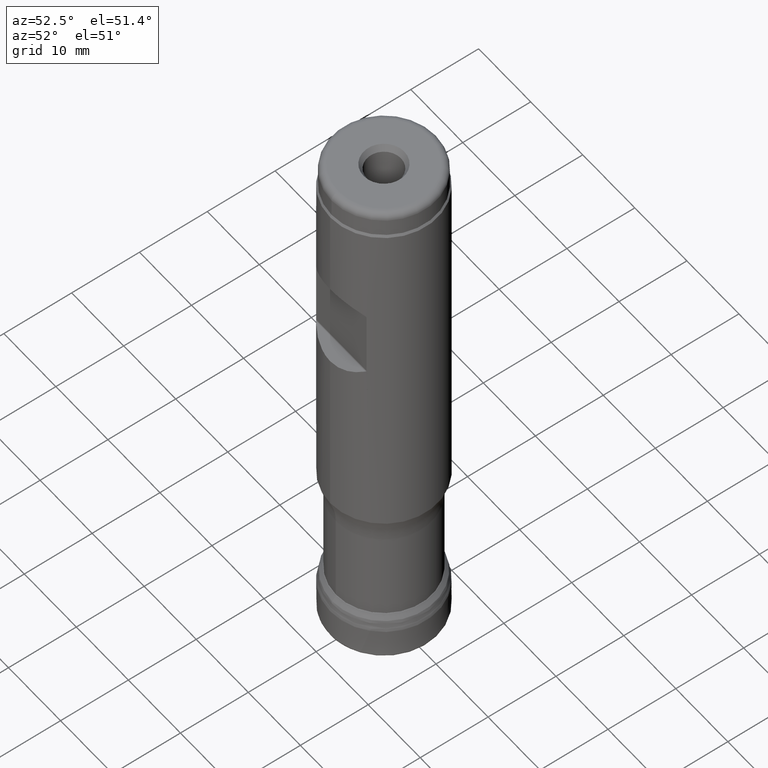
[diagram: clean part render]
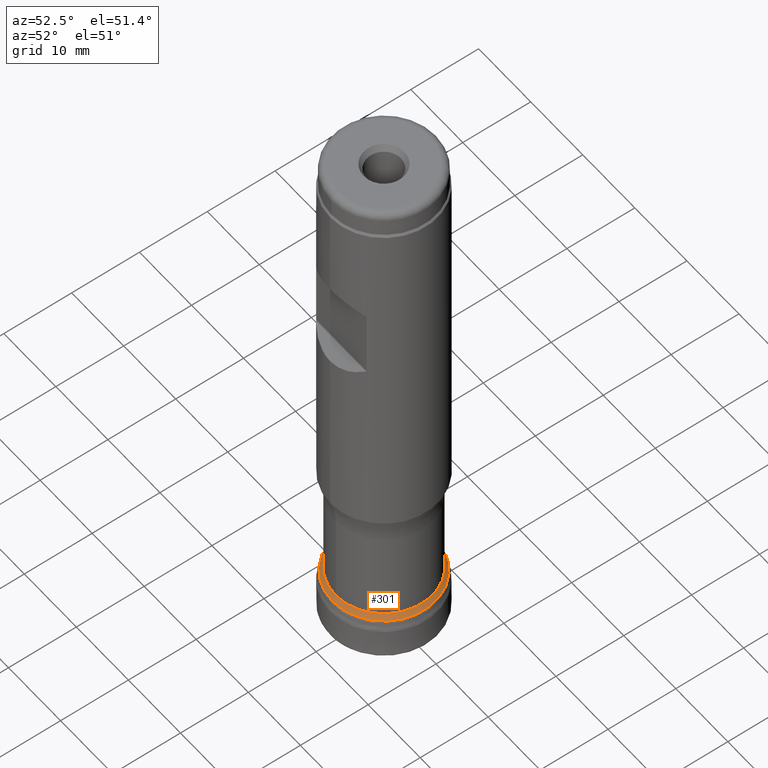
[diagram: same view with one face highlighted and labeled with its STEP entity id]
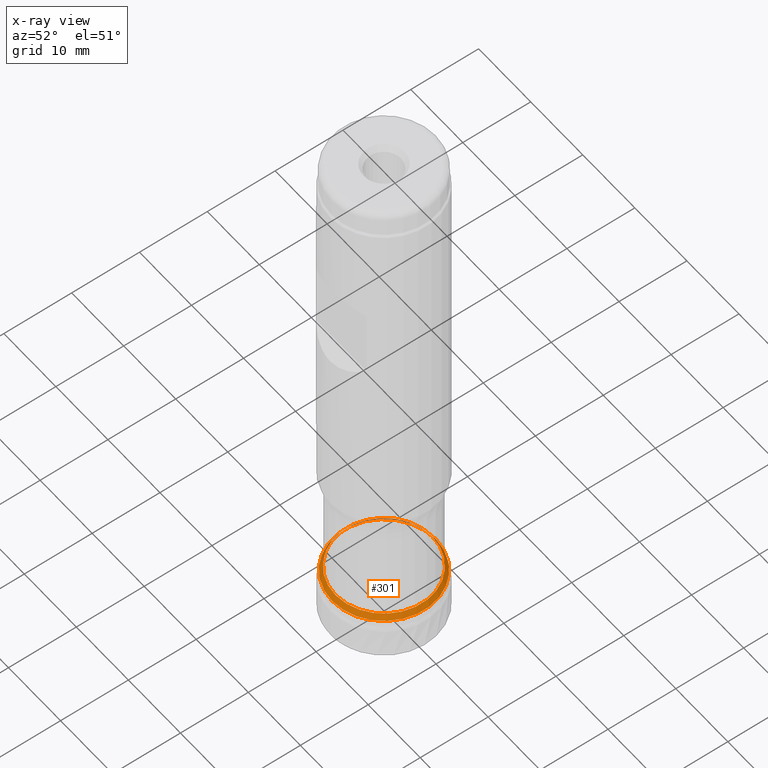
[diagram: x-ray of the same camera — body ghosted, the highlighted face saturated]
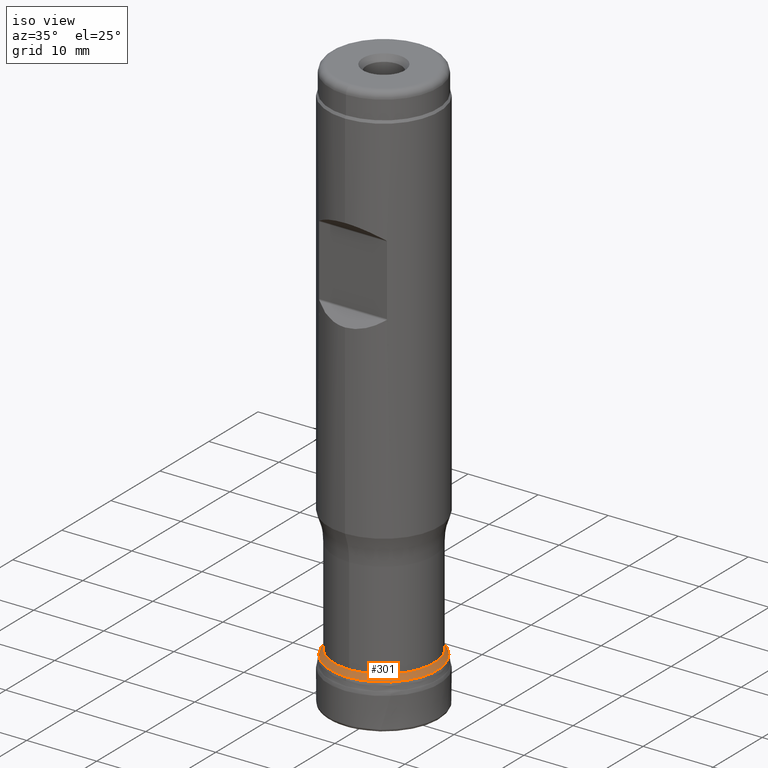
[diagram: same view with one face highlighted and labeled with its STEP entity id]
A machine part, auxiliary view. The second image highlights one B-rep face of the part: STEP entity #301.
The next image is the same camera in x-ray: the body ghosted, the highlighted face saturated — about 8% of this face is hidden behind the body in this view.
A second angle (iso view) of the same face is appended — the face is thin or edge-on in the first view.
In plain terms, the highlighted face is a SurfaceOfRevolution surface.
Its self-contained STEP definition (entity closure, byte-faithful):
#109=SURFACE_OF_REVOLUTION('',#166,#130);
#130=AXIS1_PLACEMENT('',#1284,#867);
#166=LINE('',#1283,#178);
#178=VECTOR('',#866,0.937230345319086);
#236=FACE_BOUND('',#377,.T.);
#237=FACE_BOUND('',#378,.T.);
#301=ADVANCED_FACE('',(#236,#237),#109,.F.);
#377=EDGE_LOOP('',(#479));
#378=EDGE_LOOP('',(#480));
#479=ORIENTED_EDGE('',*,*,#598,.T.);
#480=ORIENTED_EDGE('',*,*,#599,.F.);
#547=VERTEX_POINT('',#1272);
#548=VERTEX_POINT('',#1282);
#598=EDGE_CURVE('',#547,#547,#637,.T.);
#599=EDGE_CURVE('',#548,#548,#638,.T.);
#637=CIRCLE('',#743,7.62364318810079);
#638=CIRCLE('',#744,7.15192639842376);
#743=AXIS2_PLACEMENT_3D('',#1271,#861,#862);
#744=AXIS2_PLACEMENT_3D('',#1281,#864,#865);
#861=DIRECTION('',(0.,1.17145536458252E-15,1.));
#862=DIRECTION('',(0.,-1.,1.1377260406707E-15));
#864=DIRECTION('',(0.,1.17145536458252E-15,1.));
#865=DIRECTION('',(0.,-1.,1.21276658856496E-15));
#866=DIRECTION('',(0.497489686040533,-0.150634565802298,-0.854291074440583));
#867=DIRECTION('',(0.,1.17145536458252E-15,1.));
#1271=CARTESIAN_POINT('',(0.,7.4544010875426E-15,6.36336757926679));
#1272=CARTESIAN_POINT('',(0.,-7.62364318810079,6.3633675792668));
#1281=CARTESIAN_POINT('',(0.,8.39234733751038E-15,7.16403508937892));
#1282=CARTESIAN_POINT('',(0.,-7.15192639842375,7.16403508937893));
#1283=CARTESIAN_POINT('',(7.14800552407013,-0.236787323000317,7.16403508937892));
#1284=CARTESIAN_POINT('',(0.,0.,0.));